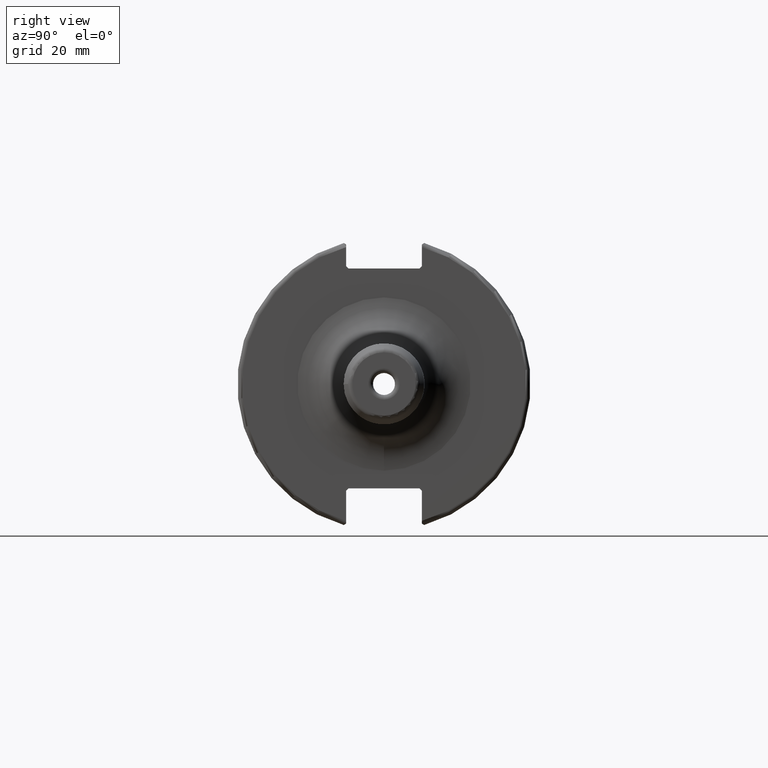
[diagram: clean part render]
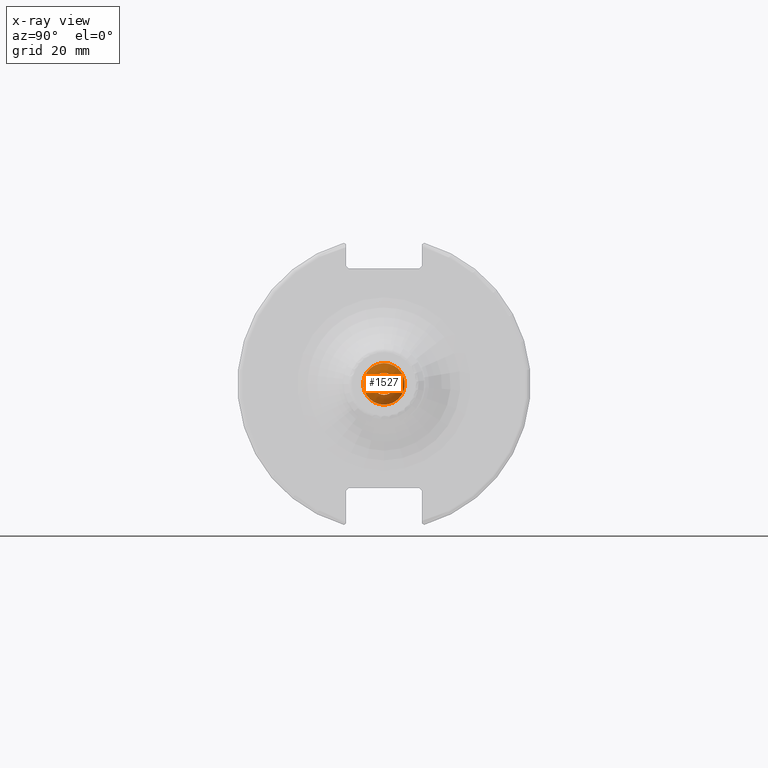
[diagram: x-ray — body ghosted, one internal face saturated and labeled with its STEP entity id]
A machine part, right view, then the same camera in x-ray: the body is ghosted and one INTERNAL B-rep face — a face not visible from any outside direction — is saturated and labeled: STEP entity #1527.
In plain terms, the highlighted conical surface has half-angle 59 deg.
Its self-contained STEP definition (entity closure, byte-faithful):
#51=CONICAL_SURFACE('',#1659,2.25,1.02974425867665);
#112=LINE('',#2433,#206);
#206=VECTOR('',#1895,2.25);
#375=FACE_OUTER_BOUND('',#466,.T.);
#466=EDGE_LOOP('',(#1096,#1097,#1098,#1099,#1100));
#559=CIRCLE('',#1634,2.38125);
#560=CIRCLE('',#1635,2.38125);
#576=CIRCLE('',#1660,4.5);
#635=VERTEX_POINT('',#2281);
#636=VERTEX_POINT('',#2283);
#663=VERTEX_POINT('',#2431);
#795=EDGE_CURVE('',#636,#635,#559,.T.);
#796=EDGE_CURVE('',#635,#636,#560,.T.);
#830=EDGE_CURVE('',#663,#663,#576,.T.);
#831=EDGE_CURVE('',#663,#636,#112,.T.);
#1096=ORIENTED_EDGE('',*,*,#830,.T.);
#1097=ORIENTED_EDGE('',*,*,#831,.T.);
#1098=ORIENTED_EDGE('',*,*,#795,.T.);
#1099=ORIENTED_EDGE('',*,*,#796,.T.);
#1100=ORIENTED_EDGE('',*,*,#831,.F.);
#1527=ADVANCED_FACE('',(#375),#51,.F.);
#1634=AXIS2_PLACEMENT_3D('',#2284,#1827,#1828);
#1635=AXIS2_PLACEMENT_3D('',#2285,#1829,#1830);
#1659=AXIS2_PLACEMENT_3D('',#2430,#1891,#1892);
#1660=AXIS2_PLACEMENT_3D('',#2432,#1893,#1894);
#1827=DIRECTION('center_axis',(1.,0.,0.));
#1828=DIRECTION('ref_axis',(0.,0.,-1.));
#1829=DIRECTION('center_axis',(1.,0.,0.));
#1830=DIRECTION('ref_axis',(0.,0.,-1.));
#1891=DIRECTION('center_axis',(-1.,0.,0.));
#1892=DIRECTION('ref_axis',(0.,0.,1.));
#1893=DIRECTION('center_axis',(-1.,0.,0.));
#1894=DIRECTION('ref_axis',(0.,0.,1.));
#1895=DIRECTION('',(0.515038074910054,1.04972719113862E-16,0.857167300702112));
#2281=CARTESIAN_POINT('',(43.5730734365646,-2.91619019046964E-16,2.38125));
#2283=CARTESIAN_POINT('',(43.5730734365646,-2.91619019046963E-16,-2.38125));
#2284=CARTESIAN_POINT('Origin',(43.5730734365646,0.,0.));
#2285=CARTESIAN_POINT('Origin',(43.5730734365646,0.,0.));
#2430=CARTESIAN_POINT('Origin',(43.651936392812,0.,0.));
#2431=CARTESIAN_POINT('',(42.3,-5.51091059616309E-16,-4.5));
#2432=CARTESIAN_POINT('Origin',(42.3,0.,0.));
#2433=CARTESIAN_POINT('',(43.651936392812,-2.75545529808154E-16,-2.25));